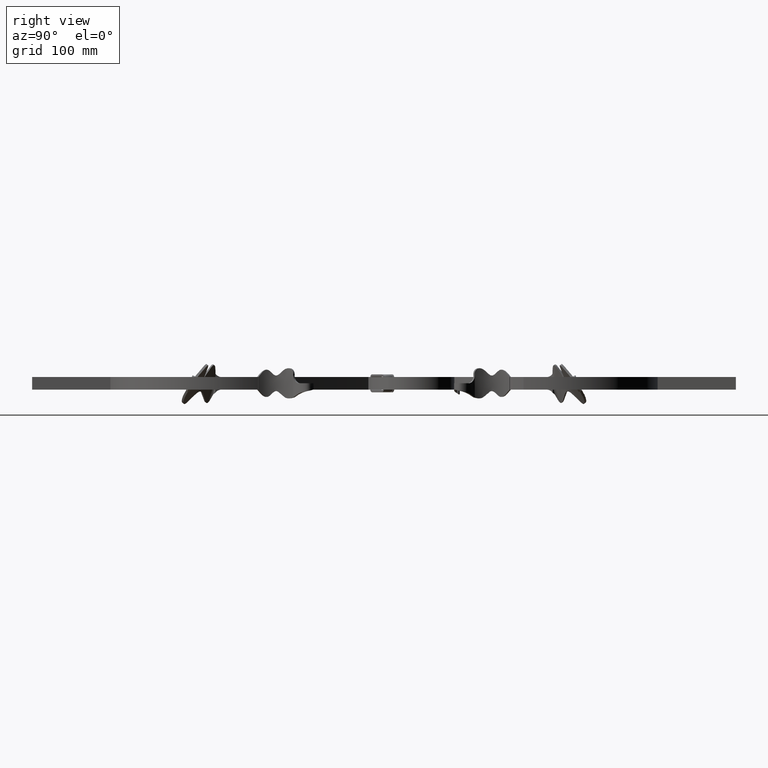
[diagram: clean part render]
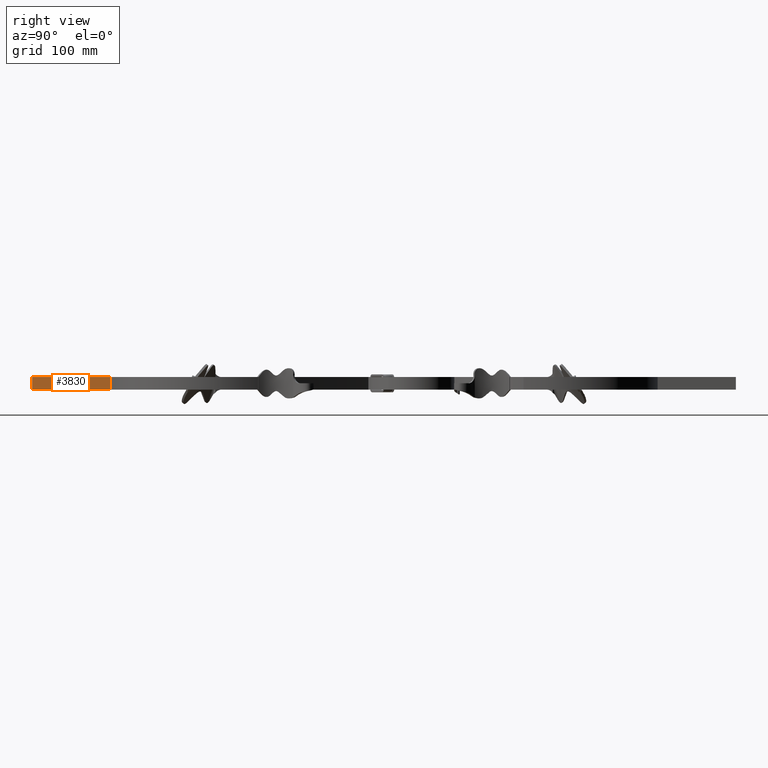
[diagram: same view with one face highlighted and labeled with its STEP entity id]
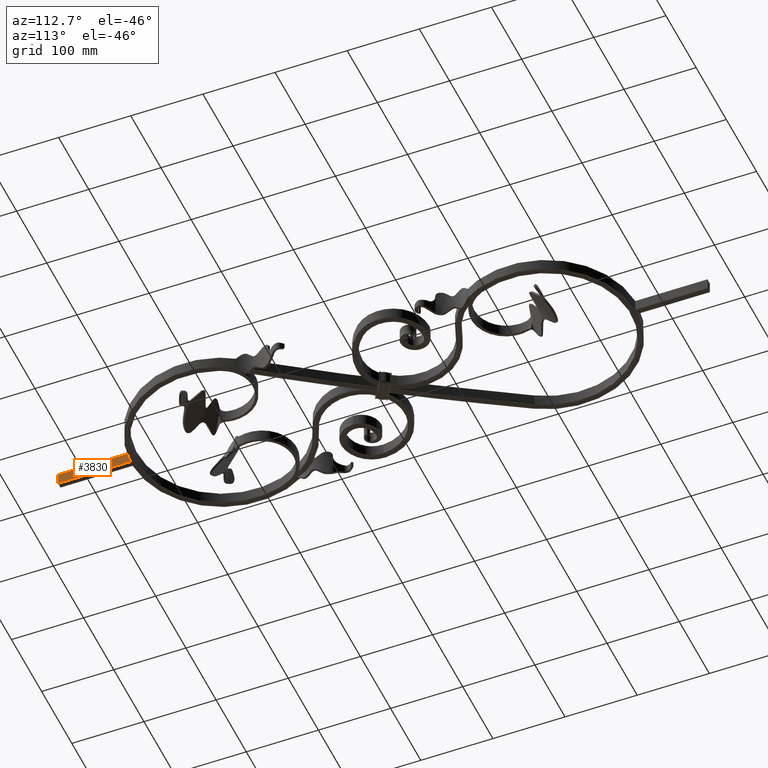
[diagram: same view with one face highlighted and labeled with its STEP entity id]
A machine part, right view. The second image highlights one B-rep face of the part: STEP entity #3830.
A second angle (auxiliary view) of the same face is appended — the face is thin or edge-on in the first view.
In plain terms, the highlighted planar face has unit normal (-1, 0, 0).
Its self-contained STEP definition (entity closure, byte-faithful):
#1764 = VERTEX_POINT ( 'NONE', #24434 ) ;
#2325 = EDGE_CURVE ( 'NONE', #22186, #1764, #5923, .T. ) ;
#2560 = VECTOR ( 'NONE', #3787, 1000.000000000000000 ) ;
#2616 = DIRECTION ( 'NONE',  ( -1.084202172485504434E-16, -0.000000000000000000, -1.000000000000000000 ) ) ;
#3358 = LINE ( 'NONE', #20183, #6423 ) ;
#3787 = DIRECTION ( 'NONE',  ( -0.000000000000000000, -1.000000000000000000, -0.000000000000000000 ) ) ;
#3830 = ADVANCED_FACE ( 'NONE', ( #16604 ), #20567, .F. ) ;
#3937 = DIRECTION ( 'NONE',  ( -0.000000000000000000, -1.000000000000000000, -0.000000000000000000 ) ) ;
#4805 = CARTESIAN_POINT ( 'NONE',  ( 4.000000000000000000, -348.0000000000000568, -8.000000000000001776 ) ) ;
#4809 = VERTEX_POINT ( 'NONE', #17584 ) ;
#4826 = VECTOR ( 'NONE', #9764, 1000.000000000000000 ) ;
#5923 = LINE ( 'NONE', #11690, #2560 ) ;
#6423 = VECTOR ( 'NONE', #2616, 1000.000000000000000 ) ;
#7374 = VERTEX_POINT ( 'NONE', #19763 ) ;
#7511 = EDGE_CURVE ( 'NONE', #4809, #22186, #11615, .T. ) ;
#8824 = AXIS2_PLACEMENT_3D ( 'NONE', #4805, #22523, #16820 ) ;
#9338 = ORIENTED_EDGE ( 'NONE', *, *, #7511, .F. ) ;
#9764 = DIRECTION ( 'NONE',  ( -0.000000000000000000, -0.000000000000000000, -1.000000000000000000 ) ) ;
#11435 = EDGE_CURVE ( 'NONE', #4809, #7374, #19505, .T. ) ;
#11494 = CARTESIAN_POINT ( 'NONE',  ( 4.000000000000000888, -349.9359836076062606, -4.336808689941989140E-16 ) ) ;
#11615 = LINE ( 'NONE', #11494, #4826 ) ;
#11690 = CARTESIAN_POINT ( 'NONE',  ( 4.000000000000000000, -348.0000000000000568, -8.000000000000001776 ) ) ;
#14585 = ORIENTED_EDGE ( 'NONE', *, *, #11435, .T. ) ;
#16604 = FACE_OUTER_BOUND ( 'NONE', #25219, .T. ) ;
#16820 = DIRECTION ( 'NONE',  ( 1.084202172485504557E-16, 0.000000000000000000, 1.000000000000000000 ) ) ;
#17584 = CARTESIAN_POINT ( 'NONE',  ( 4.000000000000001776, -349.9359836076062606, 7.999999999999998224 ) ) ;
#17806 = EDGE_CURVE ( 'NONE', #7374, #1764, #3358, .T. ) ;
#19505 = LINE ( 'NONE', #21588, #21035 ) ;
#19763 = CARTESIAN_POINT ( 'NONE',  ( 4.000000000000001776, -450.0000000000000000, 7.999999999999998224 ) ) ;
#20061 = ORIENTED_EDGE ( 'NONE', *, *, #2325, .F. ) ;
#20183 = CARTESIAN_POINT ( 'NONE',  ( 4.000000000000000000, -450.0000000000000000, -8.000000000000001776 ) ) ;
#20567 = PLANE ( 'NONE',  #8824 ) ;
#21035 = VECTOR ( 'NONE', #3937, 1000.000000000000000 ) ;
#21588 = CARTESIAN_POINT ( 'NONE',  ( 4.000000000000001776, -348.0000000000000568, 7.999999999999998224 ) ) ;
#22186 = VERTEX_POINT ( 'NONE', #22230 ) ;
#22230 = CARTESIAN_POINT ( 'NONE',  ( 4.000000000000000000, -349.9359836076062606, -8.000000000000001776 ) ) ;
#22523 = DIRECTION ( 'NONE',  ( -1.000000000000000000, 0.000000000000000000, 1.084202172485504557E-16 ) ) ;
#24434 = CARTESIAN_POINT ( 'NONE',  ( 4.000000000000000000, -450.0000000000000000, -8.000000000000001776 ) ) ;
#24695 = ORIENTED_EDGE ( 'NONE', *, *, #17806, .T. ) ;
#25219 = EDGE_LOOP ( 'NONE', ( #9338, #14585, #24695, #20061 ) ) ;